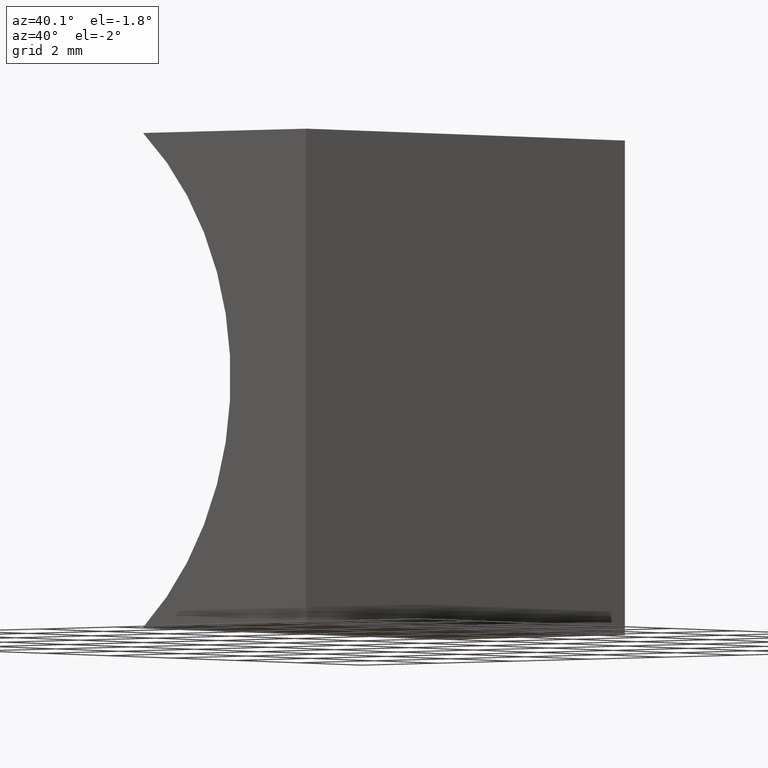
[diagram: clean part render]
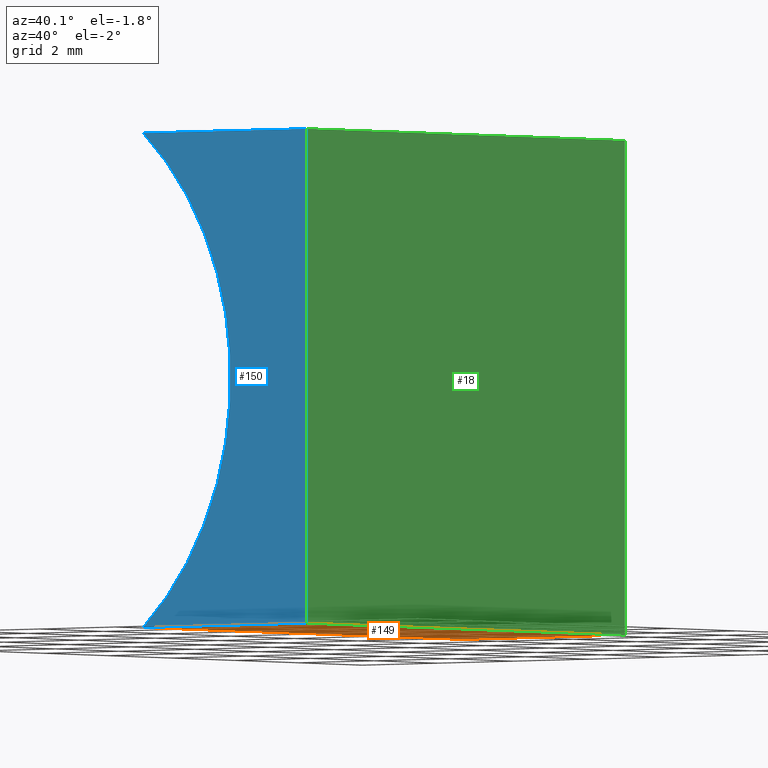
[diagram: same view with three faces highlighted in distinct colors, each labeled with its STEP entity id]
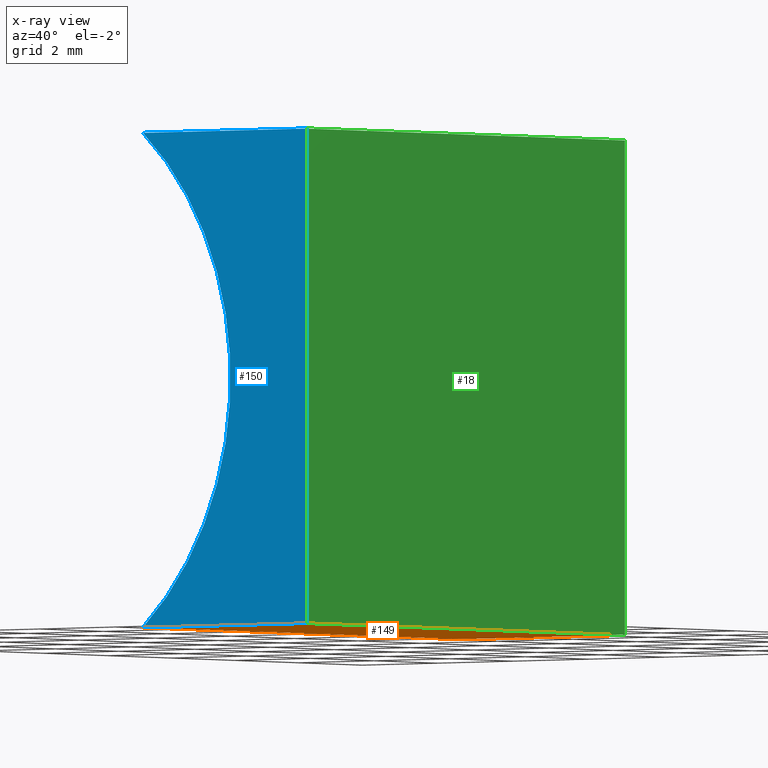
[diagram: x-ray of the same camera — body ghosted, the three highlighted faces saturated]
A machine part, auxiliary view with three faces highlighted in distinct colors.
The next image is the same camera in x-ray (body ghosted, the three faces saturated) — at least one of them is partly hidden behind the body in this view.
Their STEP definitions:

[orange] entity #149 — the highlighted planar face has unit normal (0, -0, 1).
#1 = CARTESIAN_POINT ( 'NONE',  ( 0.0000000000000000000, 0.0000000000000000000, 0.0000000000000000000 ) ) ;
#12 = AXIS2_PLACEMENT_3D ( 'NONE', #74, #25, #30 ) ;
#15 = CARTESIAN_POINT ( 'NONE',  ( 0.0000000000000000000, 10.00000000000000000, 0.0000000000000000000 ) ) ;
#23 = DIRECTION ( 'NONE',  ( -0.0000000000000000000, -1.000000000000000000, -0.0000000000000000000 ) ) ;
#24 = CARTESIAN_POINT ( 'NONE',  ( -4.313401361089091800, 10.00000000000000000, -8.673617379884035500E-016 ) ) ;
#25 = DIRECTION ( 'NONE',  ( 7.740045952744788900E-017, -0.0000000000000000000, 1.000000000000000000 ) ) ;
#27 = ORIENTED_EDGE ( 'NONE', *, *, #82, .T. ) ;
#30 = DIRECTION ( 'NONE',  ( 1.000000000000000000, 0.0000000000000000000, -7.740045952744788900E-017 ) ) ;
#31 = CARTESIAN_POINT ( 'NONE',  ( -4.313401361089091800, 0.0000000000000000000, -8.673617379884035500E-016 ) ) ;
#38 = CARTESIAN_POINT ( 'NONE',  ( -4.313401361089091800, 10.00000000000000000, -8.673617379884035500E-016 ) ) ;
#46 = ORIENTED_EDGE ( 'NONE', *, *, #157, .F. ) ;
#50 = EDGE_LOOP ( 'NONE', ( #73, #46, #158, #27 ) ) ;
#53 = LINE ( 'NONE', #86, #100 ) ;
#56 = DIRECTION ( 'NONE',  ( -1.000000000000000000, 0.0000000000000000000, 7.740045952744788900E-017 ) ) ;
#68 = EDGE_CURVE ( 'NONE', #85, #198, #53, .T. ) ;
#73 = ORIENTED_EDGE ( 'NONE', *, *, #170, .T. ) ;
#74 = CARTESIAN_POINT ( 'NONE',  ( 0.0000000000000000000, 10.00000000000000000, 0.0000000000000000000 ) ) ;
#76 = FACE_OUTER_BOUND ( 'NONE', #50, .T. ) ;
#80 = DIRECTION ( 'NONE',  ( -0.0000000000000000000, -1.000000000000000000, -0.0000000000000000000 ) ) ;
#81 = LINE ( 'NONE', #24, #172 ) ;
#82 = EDGE_CURVE ( 'NONE', #85, #122, #164, .T. ) ;
#83 = VERTEX_POINT ( 'NONE', #31 ) ;
#84 = CARTESIAN_POINT ( 'NONE',  ( 0.0000000000000000000, 0.0000000000000000000, 0.0000000000000000000 ) ) ;
#85 = VERTEX_POINT ( 'NONE', #186 ) ;
#86 = CARTESIAN_POINT ( 'NONE',  ( 0.0000000000000000000, 10.00000000000000000, 0.0000000000000000000 ) ) ;
#92 = PLANE ( 'NONE',  #12 ) ;
#99 = DIRECTION ( 'NONE',  ( -1.000000000000000000, 0.0000000000000000000, 7.740045952744788900E-017 ) ) ;
#100 = VECTOR ( 'NONE', #56, 1000.000000000000000 ) ;
#122 = VERTEX_POINT ( 'NONE', #1 ) ;
#147 = VECTOR ( 'NONE', #23, 1000.000000000000000 ) ;
#149 = ADVANCED_FACE ( 'NONE', ( #76 ), #92, .F. ) ;
#157 = EDGE_CURVE ( 'NONE', #198, #83, #81, .T. ) ;
#158 = ORIENTED_EDGE ( 'NONE', *, *, #68, .F. ) ;
#164 = LINE ( 'NONE', #15, #147 ) ;
#167 = VECTOR ( 'NONE', #99, 1000.000000000000000 ) ;
#170 = EDGE_CURVE ( 'NONE', #122, #83, #185, .T. ) ;
#172 = VECTOR ( 'NONE', #80, 1000.000000000000000 ) ;
#185 = LINE ( 'NONE', #84, #167 ) ;
#186 = CARTESIAN_POINT ( 'NONE',  ( 0.0000000000000000000, 10.00000000000000000, 0.0000000000000000000 ) ) ;
#198 = VERTEX_POINT ( 'NONE', #38 ) ;

[blue] entity #150 — the highlighted planar face has unit normal (0, 1, 0).
#1 = CARTESIAN_POINT ( 'NONE',  ( 0.0000000000000000000, 0.0000000000000000000, 0.0000000000000000000 ) ) ;
#11 = DIRECTION ( 'NONE',  ( 0.0000000000000000000, -0.0000000000000000000, 1.000000000000000000 ) ) ;
#29 = ORIENTED_EDGE ( 'NONE', *, *, #170, .F. ) ;
#31 = CARTESIAN_POINT ( 'NONE',  ( -4.313401361089091800, 0.0000000000000000000, -8.673617379884035500E-016 ) ) ;
#32 = LINE ( 'NONE', #44, #104 ) ;
#33 = DIRECTION ( 'NONE',  ( -0.0000000000000000000, -1.000000000000000000, -0.0000000000000000000 ) ) ;
#41 = VERTEX_POINT ( 'NONE', #48 ) ;
#44 = CARTESIAN_POINT ( 'NONE',  ( 0.0000000000000000000, 0.0000000000000000000, 0.0000000000000000000 ) ) ;
#48 = CARTESIAN_POINT ( 'NONE',  ( 6.123233995736766300E-016, 0.0000000000000000000, 10.00000000000000000 ) ) ;
#69 = DIRECTION ( 'NONE',  ( -6.123233995736766000E-017, -0.0000000000000000000, -1.000000000000000000 ) ) ;
#75 = EDGE_CURVE ( 'NONE', #83, #159, #119, .T. ) ;
#79 = DIRECTION ( 'NONE',  ( 0.0000000000000000000, 1.000000000000000000, 0.0000000000000000000 ) ) ;
#83 = VERTEX_POINT ( 'NONE', #31 ) ;
#84 = CARTESIAN_POINT ( 'NONE',  ( 0.0000000000000000000, 0.0000000000000000000, 0.0000000000000000000 ) ) ;
#90 = PLANE ( 'NONE',  #91 ) ;
#91 = AXIS2_PLACEMENT_3D ( 'NONE', #148, #79, #11 ) ;
#99 = DIRECTION ( 'NONE',  ( -1.000000000000000000, 0.0000000000000000000, 7.740045952744788900E-017 ) ) ;
#101 = ORIENTED_EDGE ( 'NONE', *, *, #182, .F. ) ;
#104 = VECTOR ( 'NONE', #69, 1000.000000000000000 ) ;
#107 = VECTOR ( 'NONE', #197, 1000.000000000000000 ) ;
#119 = CIRCLE ( 'NONE', #145, 6.559999999999999600 ) ;
#120 = CARTESIAN_POINT ( 'NONE',  ( -8.560000000000000500, 0.0000000000000000000, 5.000000000000000900 ) ) ;
#122 = VERTEX_POINT ( 'NONE', #1 ) ;
#132 = LINE ( 'NONE', #161, #107 ) ;
#145 = AXIS2_PLACEMENT_3D ( 'NONE', #120, #33, #181 ) ;
#148 = CARTESIAN_POINT ( 'NONE',  ( -8.560000000000000500, 0.0000000000000000000, 5.000000000000000900 ) ) ;
#150 = ADVANCED_FACE ( 'NONE', ( #174 ), #90, .F. ) ;
#159 = VERTEX_POINT ( 'NONE', #162 ) ;
#161 = CARTESIAN_POINT ( 'NONE',  ( 6.123233995736766300E-016, 0.0000000000000000000, 10.00000000000000000 ) ) ;
#162 = CARTESIAN_POINT ( 'NONE',  ( -4.313401361089090900, 0.0000000000000000000, 10.00000000000000200 ) ) ;
#167 = VECTOR ( 'NONE', #99, 1000.000000000000000 ) ;
#170 = EDGE_CURVE ( 'NONE', #122, #83, #185, .T. ) ;
#174 = FACE_OUTER_BOUND ( 'NONE', #188, .T. ) ;
#181 = DIRECTION ( 'NONE',  ( 0.0000000000000000000, 0.0000000000000000000, 1.000000000000000000 ) ) ;
#182 = EDGE_CURVE ( 'NONE', #41, #122, #32, .T. ) ;
#185 = LINE ( 'NONE', #84, #167 ) ;
#188 = EDGE_LOOP ( 'NONE', ( #29, #101, #204, #199 ) ) ;
#192 = EDGE_CURVE ( 'NONE', #159, #41, #132, .T. ) ;
#197 = DIRECTION ( 'NONE',  ( 1.000000000000000000, -0.0000000000000000000, -4.021706608676931700E-016 ) ) ;
#199 = ORIENTED_EDGE ( 'NONE', *, *, #75, .F. ) ;
#204 = ORIENTED_EDGE ( 'NONE', *, *, #192, .F. ) ;

[green] entity #18 — the highlighted planar face has unit normal (-1, 0, 0).
#1 = CARTESIAN_POINT ( 'NONE',  ( 0.0000000000000000000, 0.0000000000000000000, 0.0000000000000000000 ) ) ;
#4 = VECTOR ( 'NONE', #28, 1000.000000000000000 ) ;
#5 = ORIENTED_EDGE ( 'NONE', *, *, #82, .F. ) ;
#13 = DIRECTION ( 'NONE',  ( 6.123233995736766000E-017, 0.0000000000000000000, 1.000000000000000000 ) ) ;
#15 = CARTESIAN_POINT ( 'NONE',  ( 0.0000000000000000000, 10.00000000000000000, 0.0000000000000000000 ) ) ;
#17 = CARTESIAN_POINT ( 'NONE',  ( 0.0000000000000000000, 10.00000000000000000, 0.0000000000000000000 ) ) ;
#18 = ADVANCED_FACE ( 'NONE', ( #183 ), #55, .F. ) ;
#23 = DIRECTION ( 'NONE',  ( -0.0000000000000000000, -1.000000000000000000, -0.0000000000000000000 ) ) ;
#28 = DIRECTION ( 'NONE',  ( -6.123233995736766000E-017, -0.0000000000000000000, -1.000000000000000000 ) ) ;
#32 = LINE ( 'NONE', #44, #104 ) ;
#35 = EDGE_CURVE ( 'NONE', #138, #41, #87, .T. ) ;
#41 = VERTEX_POINT ( 'NONE', #48 ) ;
#44 = CARTESIAN_POINT ( 'NONE',  ( 0.0000000000000000000, 0.0000000000000000000, 0.0000000000000000000 ) ) ;
#48 = CARTESIAN_POINT ( 'NONE',  ( 6.123233995736766300E-016, 0.0000000000000000000, 10.00000000000000000 ) ) ;
#55 = PLANE ( 'NONE',  #127 ) ;
#63 = DIRECTION ( 'NONE',  ( -1.000000000000000000, 0.0000000000000000000, 6.123233995736766000E-017 ) ) ;
#67 = EDGE_LOOP ( 'NONE', ( #177, #5, #203, #200 ) ) ;
#69 = DIRECTION ( 'NONE',  ( -6.123233995736766000E-017, -0.0000000000000000000, -1.000000000000000000 ) ) ;
#82 = EDGE_CURVE ( 'NONE', #85, #122, #164, .T. ) ;
#85 = VERTEX_POINT ( 'NONE', #186 ) ;
#87 = LINE ( 'NONE', #136, #141 ) ;
#89 = EDGE_CURVE ( 'NONE', #138, #85, #93, .T. ) ;
#93 = LINE ( 'NONE', #124, #4 ) ;
#104 = VECTOR ( 'NONE', #69, 1000.000000000000000 ) ;
#122 = VERTEX_POINT ( 'NONE', #1 ) ;
#124 = CARTESIAN_POINT ( 'NONE',  ( 0.0000000000000000000, 10.00000000000000000, 0.0000000000000000000 ) ) ;
#127 = AXIS2_PLACEMENT_3D ( 'NONE', #17, #63, #13 ) ;
#136 = CARTESIAN_POINT ( 'NONE',  ( 6.123233995736766300E-016, 10.00000000000000000, 10.00000000000000000 ) ) ;
#138 = VERTEX_POINT ( 'NONE', #156 ) ;
#141 = VECTOR ( 'NONE', #144, 1000.000000000000000 ) ;
#144 = DIRECTION ( 'NONE',  ( -0.0000000000000000000, -1.000000000000000000, -0.0000000000000000000 ) ) ;
#147 = VECTOR ( 'NONE', #23, 1000.000000000000000 ) ;
#156 = CARTESIAN_POINT ( 'NONE',  ( 6.123233995736766300E-016, 10.00000000000000000, 10.00000000000000000 ) ) ;
#164 = LINE ( 'NONE', #15, #147 ) ;
#177 = ORIENTED_EDGE ( 'NONE', *, *, #182, .T. ) ;
#182 = EDGE_CURVE ( 'NONE', #41, #122, #32, .T. ) ;
#183 = FACE_OUTER_BOUND ( 'NONE', #67, .T. ) ;
#186 = CARTESIAN_POINT ( 'NONE',  ( 0.0000000000000000000, 10.00000000000000000, 0.0000000000000000000 ) ) ;
#200 = ORIENTED_EDGE ( 'NONE', *, *, #35, .T. ) ;
#203 = ORIENTED_EDGE ( 'NONE', *, *, #89, .F. ) ;